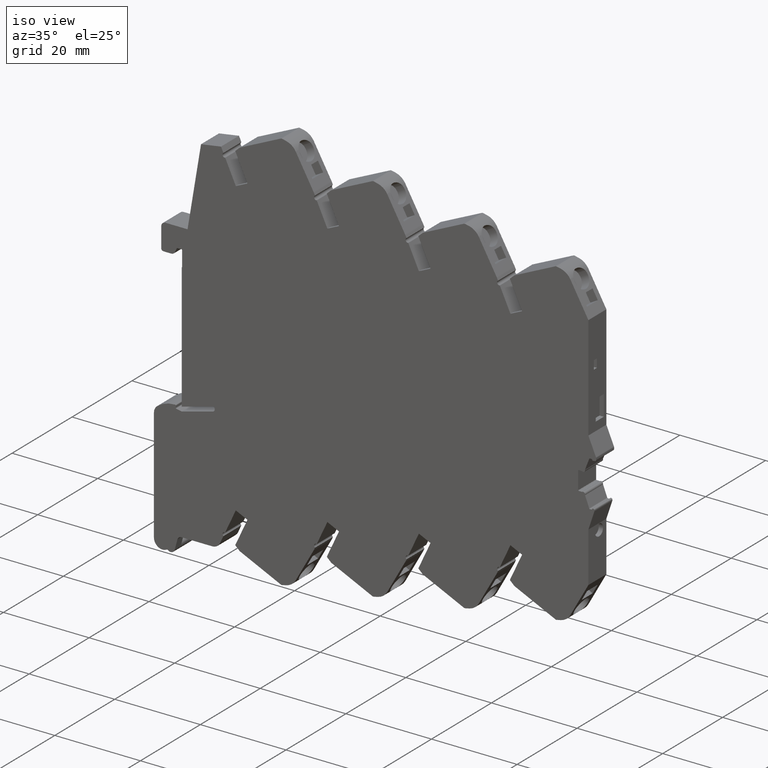
[diagram: clean part render]
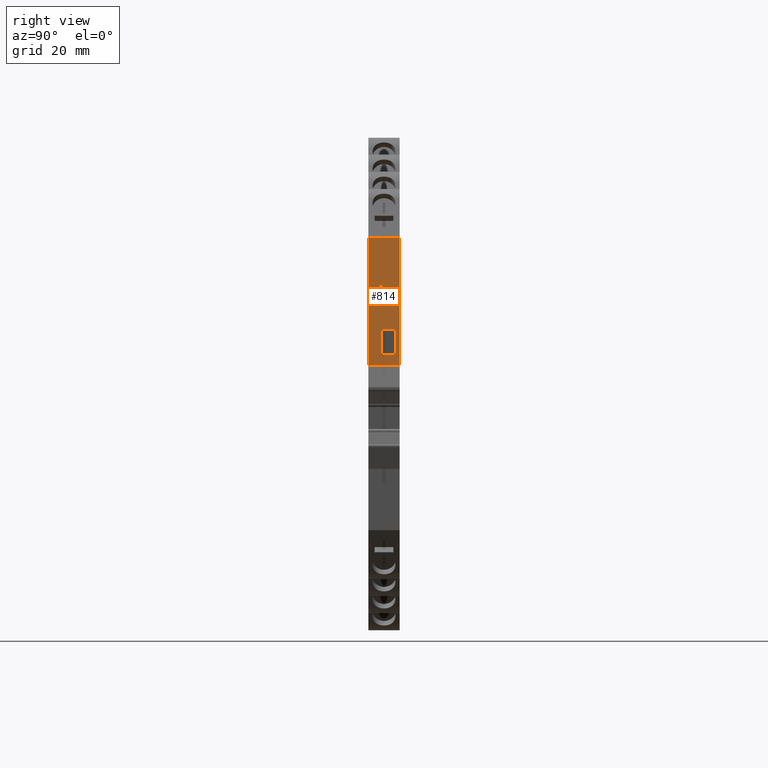
[diagram: tour spotlight — one face highlighted and labeled with its STEP entity id]
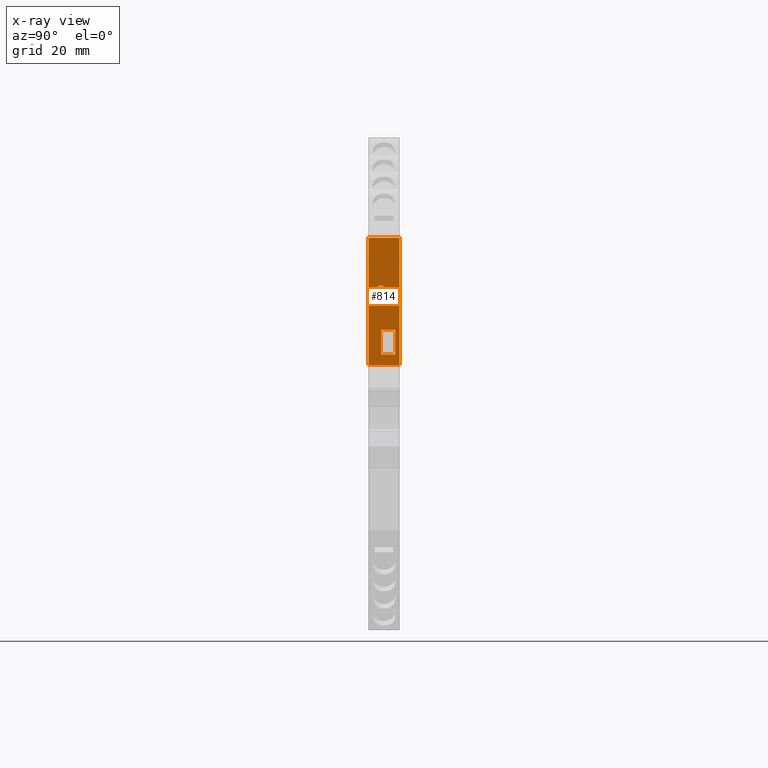
[diagram: x-ray of the same camera — body ghosted, this tour face saturated]
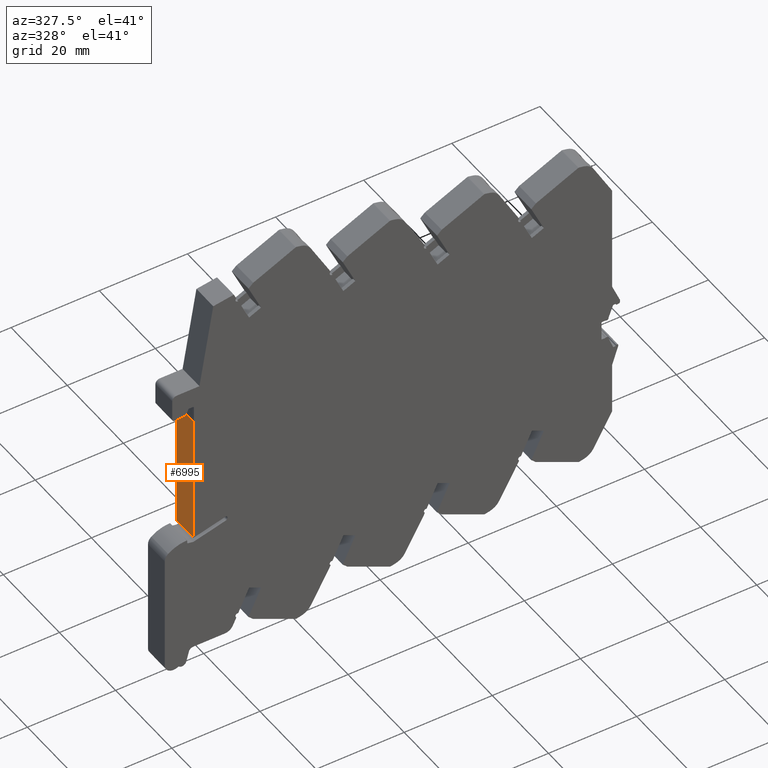
[diagram: tour spotlight — one face highlighted and labeled with its STEP entity id]
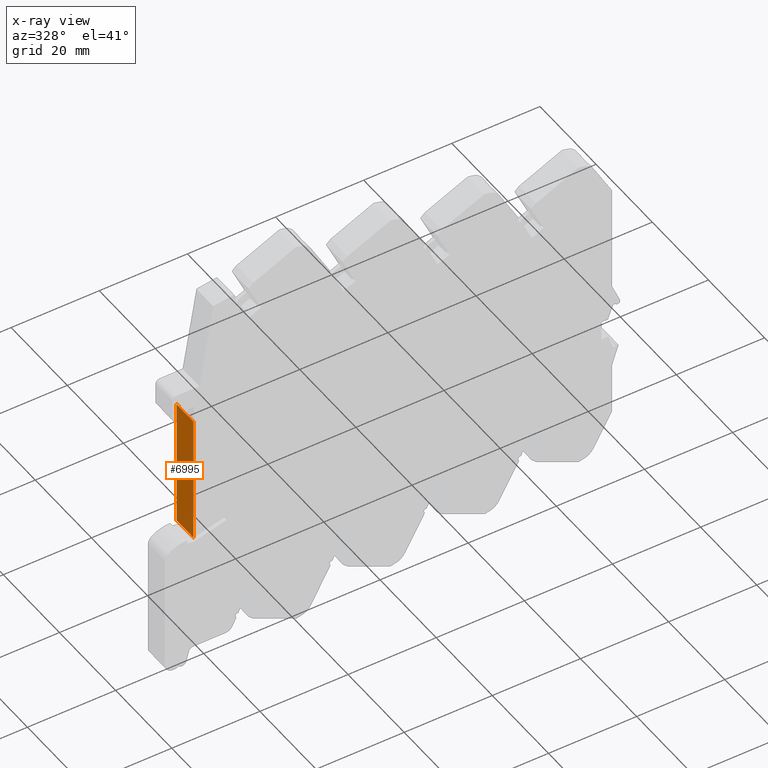
[diagram: x-ray of the same camera — body ghosted, this tour face saturated]
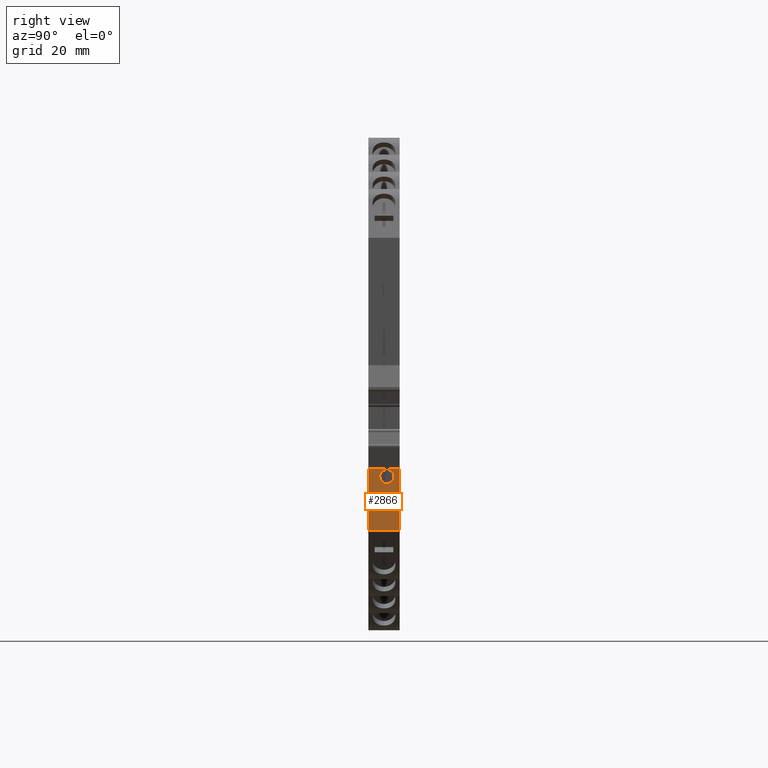
[diagram: tour spotlight — one face highlighted and labeled with its STEP entity id]
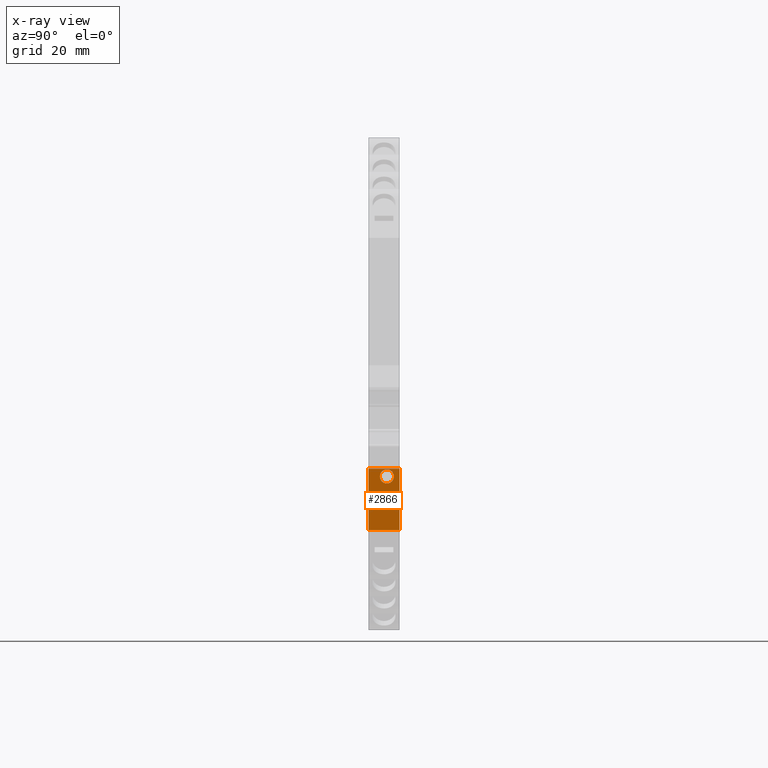
[diagram: x-ray of the same camera — body ghosted, this tour face saturated]
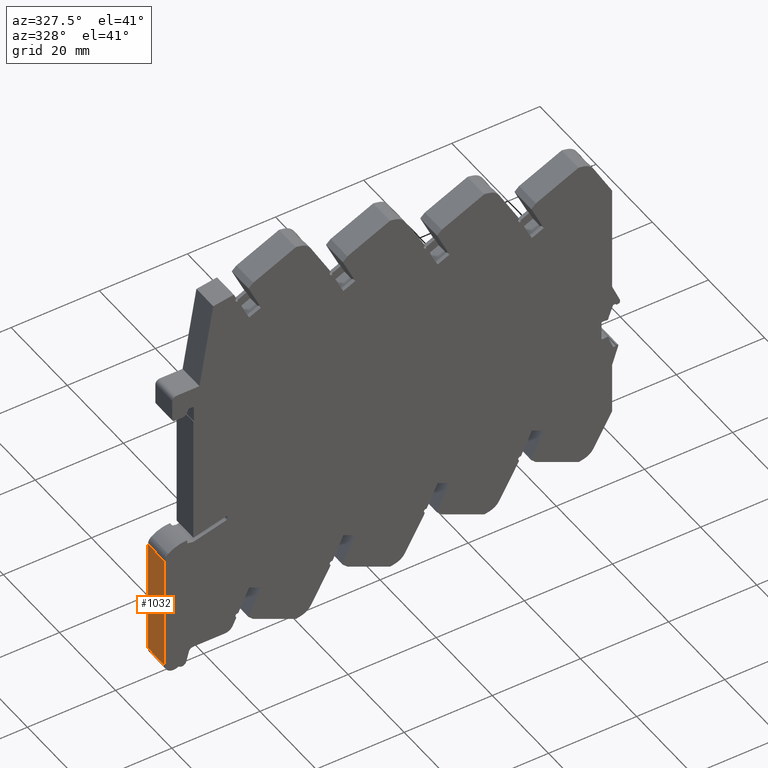
[diagram: tour spotlight — one face highlighted and labeled with its STEP entity id]
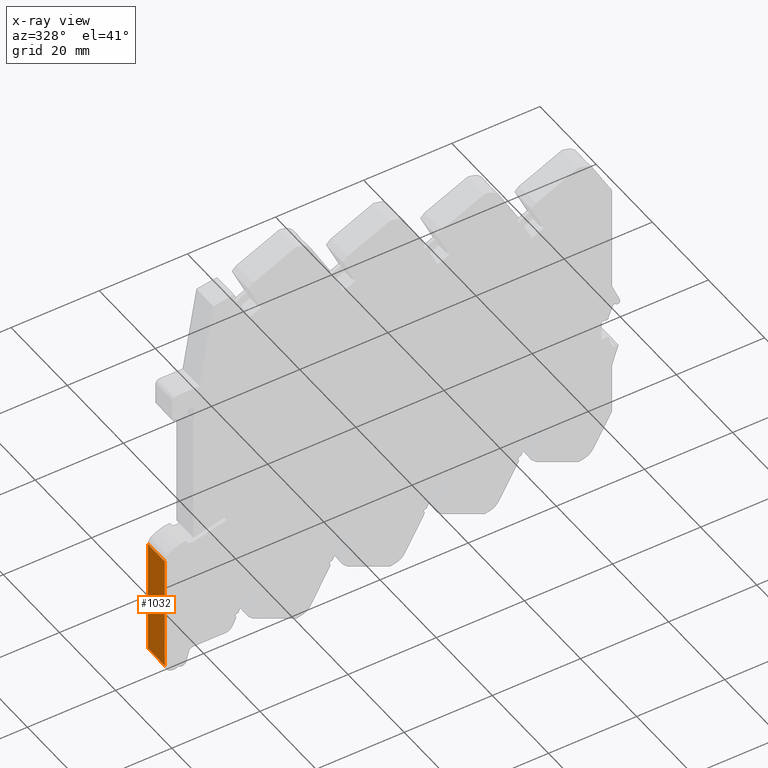
[diagram: x-ray of the same camera — body ghosted, this tour face saturated]
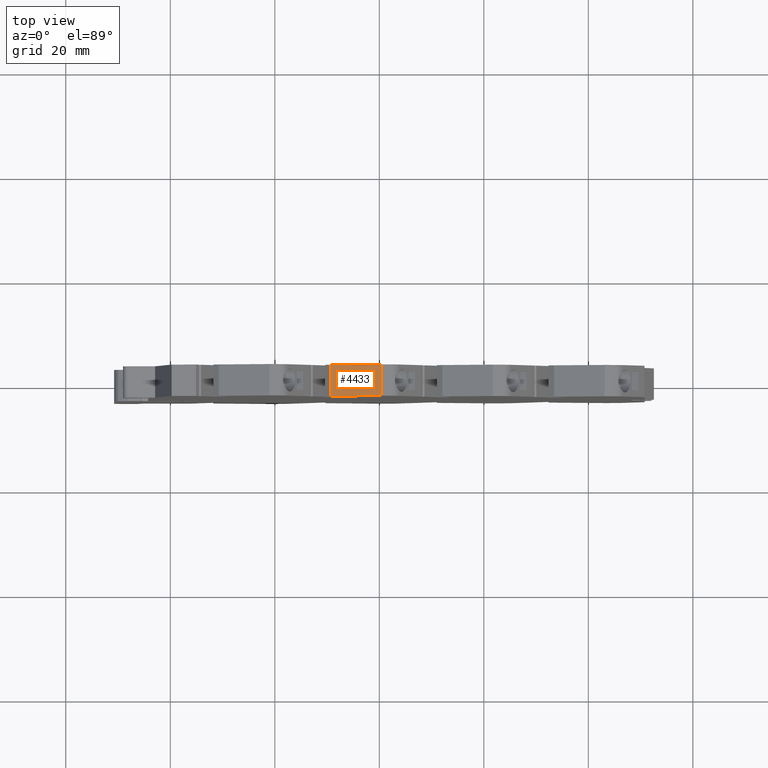
[diagram: tour spotlight — one face highlighted and labeled with its STEP entity id]
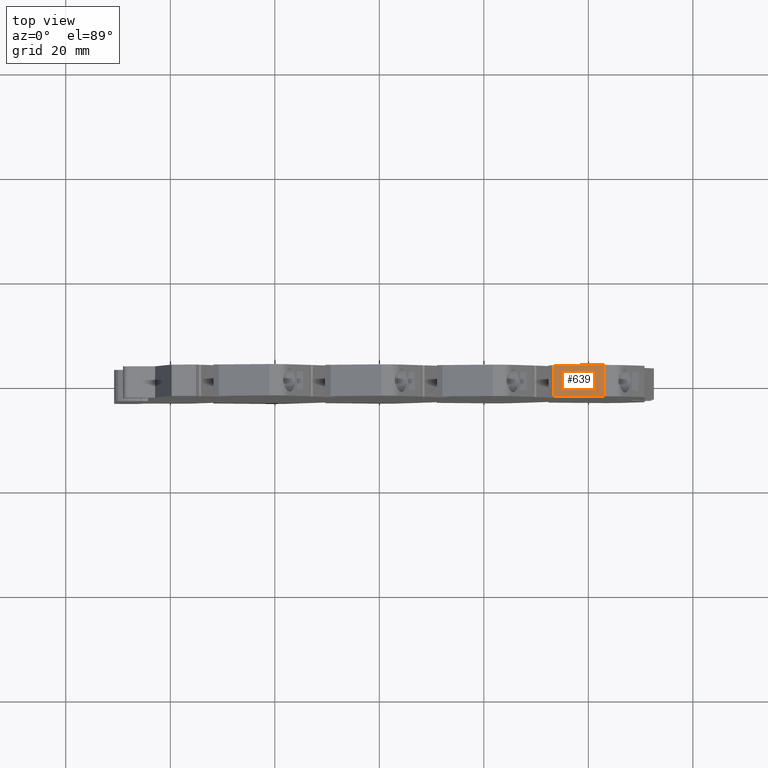
[diagram: tour spotlight — one face highlighted and labeled with its STEP entity id]
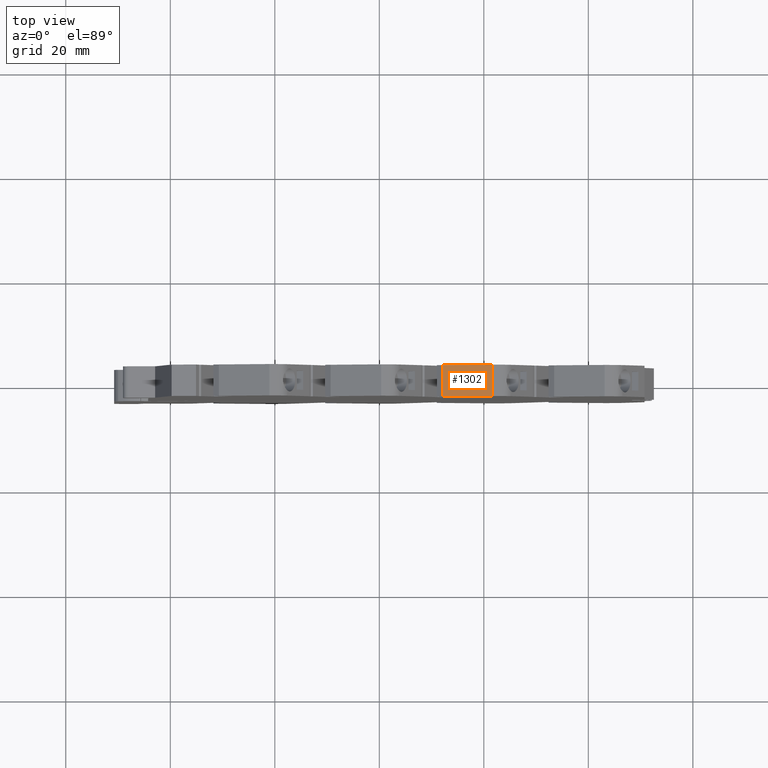
[diagram: tour spotlight — one face highlighted and labeled with its STEP entity id]
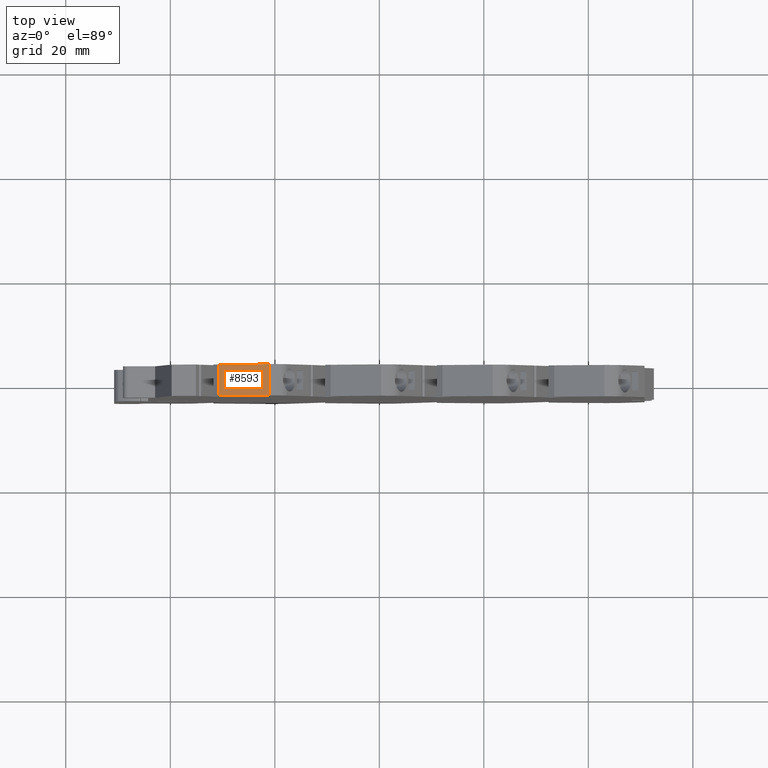
[diagram: tour spotlight — one face highlighted and labeled with its STEP entity id]
A machine part: a face-by-face anatomy tour. The part has 267 B-rep faces; the first image is the clean iso view, then the 8 largest visible faces are spotlighted one at a time (largest first), each with its STEP entity span.

Face 1 — right view, entity #814. An x-ray twin of the same camera follows (body ghosted, this face saturated) — the face is partly hidden behind the body. In plain terms, the highlighted planar face has unit normal (-1, 0, 0).
Definition (entity closure, byte-faithful):
#105 = DIRECTION ( 'NONE',  ( -1.000000000000000000, 0.000000000000000000, 0.000000000000000000 ) ) ;
#234 = ORIENTED_EDGE ( 'NONE', *, *, #1530, .F. ) ;
#239 = VECTOR ( 'NONE', #4626, 1000.000000000000000 ) ;
#244 = EDGE_CURVE ( 'NONE', #7953, #7270, #5267, .T. ) ;
#312 = VECTOR ( 'NONE', #7015, 1000.000000000000000 ) ;
#331 = ORIENTED_EDGE ( 'NONE', *, *, #2868, .F. ) ;
#379 = CARTESIAN_POINT ( 'NONE',  ( 3.000000000000000000, 4.574627000000000443, 50.75000000000000711 ) ) ;
#527 = DIRECTION ( 'NONE',  ( -1.000000000000000000, 0.000000000000000000, 0.000000000000000000 ) ) ;
#814 = ADVANCED_FACE ( 'NONE', ( #6098, #5960, #8627 ), #7319, .F. ) ;
#963 = VERTEX_POINT ( 'NONE', #3096 ) ;
#979 = VERTEX_POINT ( 'NONE', #7752 ) ;
#1050 = ORIENTED_EDGE ( 'NONE', *, *, #5834, .F. ) ;
#1183 = CARTESIAN_POINT ( 'NONE',  ( -0.1499999999999999667, 19.77500000000000213, 50.75000000000000711 ) ) ;
#1234 = EDGE_LOOP ( 'NONE', ( #331, #4892, #5023, #3878 ) ) ;
#1530 = EDGE_CURVE ( 'NONE', #1714, #1968, #8558, .T. ) ;
#1714 = VERTEX_POINT ( 'NONE', #2939 ) ;
#1932 = DIRECTION ( 'NONE',  ( 1.000000000000000000, 0.000000000000000000, 0.000000000000000000 ) ) ;
#1942 = CARTESIAN_POINT ( 'NONE',  ( -0.5500000000000001554, 6.575000000000000178, 50.75000000000000711 ) ) ;
#1968 = VERTEX_POINT ( 'NONE', #6665 ) ;
#2149 = ORIENTED_EDGE ( 'NONE', *, *, #2518, .T. ) ;
#2200 = DIRECTION ( 'NONE',  ( 1.000000000000000000, 0.000000000000000000, 0.000000000000000000 ) ) ;
#2347 = EDGE_LOOP ( 'NONE', ( #4737, #234, #7291, #5054 ) ) ;
#2406 = ORIENTED_EDGE ( 'NONE', *, *, #2559, .F. ) ;
#2483 = VECTOR ( 'NONE', #105, 1000.000000000000000 ) ;
#2518 = EDGE_CURVE ( 'NONE', #5297, #963, #3253, .T. ) ;
#2559 = EDGE_CURVE ( 'NONE', #7469, #4048, #6588, .T. ) ;
#2595 = CARTESIAN_POINT ( 'NONE',  ( 3.000000000000000000, 4.574627000000000443, 50.75000000000000711 ) ) ;
#2602 = VERTEX_POINT ( 'NONE', #1183 ) ;
#2621 = DIRECTION ( 'NONE',  ( 0.000000000000000000, 0.000000000000000000, -1.000000000000000000 ) ) ;
#2778 = VECTOR ( 'NONE', #3115, 1000.000000000000000 ) ;
#2813 = VERTEX_POINT ( 'NONE', #7817 ) ;
#2868 = EDGE_CURVE ( 'NONE', #7270, #2602, #5706, .T. ) ;
#2939 = CARTESIAN_POINT ( 'NONE',  ( -0.5500000000000001554, 6.575000000000000178, 50.75000000000000711 ) ) ;
#3096 = CARTESIAN_POINT ( 'NONE',  ( -3.000000000000000000, 28.93662499999999937, 50.75000000000000711 ) ) ;
#3115 = DIRECTION ( 'NONE',  ( 0.000000000000000000, -1.000000000000000000, 0.000000000000000000 ) ) ;
#3253 = LINE ( 'NONE', #4060, #8487 ) ;
#3316 = CARTESIAN_POINT ( 'NONE',  ( -0.5500000000000001554, 11.37500000000000000, 50.75000000000000711 ) ) ;
#3522 = EDGE_CURVE ( 'NONE', #979, #7953, #5394, .T. ) ;
#3587 = VECTOR ( 'NONE', #5885, 1000.000000000000000 ) ;
#3600 = LINE ( 'NONE', #8416, #7253 ) ;
#3741 = AXIS2_PLACEMENT_3D ( 'NONE', #6664, #2621, #5305 ) ;
#3767 = VERTEX_POINT ( 'NONE', #8099 ) ;
#3782 = DIRECTION ( 'NONE',  ( 0.000000000000000000, 1.000000000000000000, 0.000000000000000000 ) ) ;
#3878 = ORIENTED_EDGE ( 'NONE', *, *, #5304, .F. ) ;
#3944 = CARTESIAN_POINT ( 'NONE',  ( -1.149999999999999911, 17.77499999999999858, 50.75000000000000711 ) ) ;
#3995 = VECTOR ( 'NONE', #2200, 1000.000000000000000 ) ;
#4047 = CARTESIAN_POINT ( 'NONE',  ( -0.1499999999999999667, 17.77499999999999858, 50.75000000000000711 ) ) ;
#4048 = VERTEX_POINT ( 'NONE', #7782 ) ;
#4060 = CARTESIAN_POINT ( 'NONE',  ( 3.000000000000000000, 28.93662499999999937, 50.75000000000000711 ) ) ;
#4154 = CARTESIAN_POINT ( 'NONE',  ( 3.000000000000000000, 28.93662499999999937, 50.75000000000000711 ) ) ;
#4189 = VECTOR ( 'NONE', #8636, 1000.000000000000000 ) ;
#4366 = EDGE_CURVE ( 'NONE', #963, #4048, #5141, .T. ) ;
#4393 = CARTESIAN_POINT ( 'NONE',  ( 2.149999999999999911, 6.575000000000000178, 50.75000000000000711 ) ) ;
#4568 = VECTOR ( 'NONE', #1932, 1000.000000000000000 ) ;
#4626 = DIRECTION ( 'NONE',  ( 0.000000000000000000, -1.000000000000000000, 0.000000000000000000 ) ) ;
#4737 = ORIENTED_EDGE ( 'NONE', *, *, #5862, .F. ) ;
#4892 = ORIENTED_EDGE ( 'NONE', *, *, #244, .F. ) ;
#5023 = ORIENTED_EDGE ( 'NONE', *, *, #3522, .F. ) ;
#5054 = ORIENTED_EDGE ( 'NONE', *, *, #5623, .F. ) ;
#5141 = LINE ( 'NONE', #5618, #2778 ) ;
#5183 = LINE ( 'NONE', #5313, #4189 ) ;
#5267 = LINE ( 'NONE', #7946, #4568 ) ;
#5289 = EDGE_LOOP ( 'NONE', ( #5952, #2406, #1050, #2149 ) ) ;
#5297 = VERTEX_POINT ( 'NONE', #4154 ) ;
#5304 = EDGE_CURVE ( 'NONE', #2602, #979, #6289, .T. ) ;
#5305 = DIRECTION ( 'NONE',  ( -1.000000000000000000, 0.000000000000000000, 0.000000000000000000 ) ) ;
#5313 = CARTESIAN_POINT ( 'NONE',  ( 2.149999999999999911, 11.37500000000000000, 50.75000000000000711 ) ) ;
#5389 = EDGE_CURVE ( 'NONE', #3767, #1714, #5470, .T. ) ;
#5394 = LINE ( 'NONE', #6137, #6039 ) ;
#5470 = LINE ( 'NONE', #3316, #239 ) ;
#5612 = LINE ( 'NONE', #4393, #312 ) ;
#5618 = CARTESIAN_POINT ( 'NONE',  ( -3.000000000000000000, 28.93662499999999937, 50.75000000000000711 ) ) ;
#5623 = EDGE_CURVE ( 'NONE', #2813, #3767, #5183, .T. ) ;
#5706 = LINE ( 'NONE', #7113, #8160 ) ;
#5834 = EDGE_CURVE ( 'NONE', #5297, #7469, #3600, .T. ) ;
#5862 = EDGE_CURVE ( 'NONE', #1968, #2813, #5612, .T. ) ;
#5885 = DIRECTION ( 'NONE',  ( -1.000000000000000000, 0.000000000000000000, 0.000000000000000000 ) ) ;
#5952 = ORIENTED_EDGE ( 'NONE', *, *, #4366, .T. ) ;
#5960 = FACE_BOUND ( 'NONE', #2347, .T. ) ;
#6039 = VECTOR ( 'NONE', #6834, 1000.000000000000000 ) ;
#6098 = FACE_OUTER_BOUND ( 'NONE', #5289, .T. ) ;
#6137 = CARTESIAN_POINT ( 'NONE',  ( -1.149999999999999911, 19.77500000000000213, 50.75000000000000711 ) ) ;
#6278 = DIRECTION ( 'NONE',  ( 0.000000000000000000, -1.000000000000000000, 0.000000000000000000 ) ) ;
#6289 = LINE ( 'NONE', #6736, #2483 ) ;
#6588 = LINE ( 'NONE', #2595, #3587 ) ;
#6664 = CARTESIAN_POINT ( 'NONE',  ( 3.000000000000000000, 28.93662499999999937, 50.75000000000000711 ) ) ;
#6665 = CARTESIAN_POINT ( 'NONE',  ( 2.149999999999999911, 6.575000000000000178, 50.75000000000000711 ) ) ;
#6736 = CARTESIAN_POINT ( 'NONE',  ( -0.1499999999999999667, 19.77500000000000213, 50.75000000000000711 ) ) ;
#6834 = DIRECTION ( 'NONE',  ( 0.000000000000000000, -1.000000000000000000, 0.000000000000000000 ) ) ;
#7015 = DIRECTION ( 'NONE',  ( 0.000000000000000000, 1.000000000000000000, 0.000000000000000000 ) ) ;
#7113 = CARTESIAN_POINT ( 'NONE',  ( -0.1499999999999999667, 17.77499999999999858, 50.75000000000000711 ) ) ;
#7253 = VECTOR ( 'NONE', #6278, 1000.000000000000000 ) ;
#7270 = VERTEX_POINT ( 'NONE', #4047 ) ;
#7291 = ORIENTED_EDGE ( 'NONE', *, *, #5389, .F. ) ;
#7319 = PLANE ( 'NONE',  #3741 ) ;
#7469 = VERTEX_POINT ( 'NONE', #379 ) ;
#7752 = CARTESIAN_POINT ( 'NONE',  ( -1.149999999999999911, 19.77500000000000213, 50.75000000000000711 ) ) ;
#7782 = CARTESIAN_POINT ( 'NONE',  ( -3.000000000000000000, 4.574627000000000443, 50.75000000000000711 ) ) ;
#7817 = CARTESIAN_POINT ( 'NONE',  ( 2.149999999999999911, 11.37500000000000000, 50.75000000000000711 ) ) ;
#7946 = CARTESIAN_POINT ( 'NONE',  ( -1.149999999999999911, 17.77499999999999858, 50.75000000000000711 ) ) ;
#7953 = VERTEX_POINT ( 'NONE', #3944 ) ;
#8099 = CARTESIAN_POINT ( 'NONE',  ( -0.5500000000000001554, 11.37500000000000000, 50.75000000000000711 ) ) ;
#8160 = VECTOR ( 'NONE', #3782, 1000.000000000000000 ) ;
#8416 = CARTESIAN_POINT ( 'NONE',  ( 3.000000000000000000, 28.93662499999999937, 50.75000000000000711 ) ) ;
#8487 = VECTOR ( 'NONE', #527, 1000.000000000000000 ) ;
#8558 = LINE ( 'NONE', #1942, #3995 ) ;
#8627 = FACE_BOUND ( 'NONE', #1234, .T. ) ;
#8636 = DIRECTION ( 'NONE',  ( -1.000000000000000000, 0.000000000000000000, 0.000000000000000000 ) ) ;

Face 2 — auxiliary view, entity #6995. An x-ray twin of the same camera follows (body ghosted, this face saturated) — the face is partly hidden behind the body. In plain terms, the highlighted planar face has unit normal (1, 0, 0).
Definition (entity closure, byte-faithful):
#24 = DIRECTION ( 'NONE',  ( 0.000000000000000000, 1.000000000000000000, 0.000000000000000000 ) ) ;
#584 = AXIS2_PLACEMENT_3D ( 'NONE', #5373, #5464, #4191 ) ;
#1441 = VECTOR ( 'NONE', #6847, 1000.000000000000000 ) ;
#1446 = LINE ( 'NONE', #2021, #1441 ) ;
#1488 = DIRECTION ( 'NONE',  ( -1.000000000000000000, 0.000000000000000000, 0.000000000000000000 ) ) ;
#1779 = CARTESIAN_POINT ( 'NONE',  ( -3.000000000000000000, 14.72499999999999964, -44.24999999999999289 ) ) ;
#1858 = ORIENTED_EDGE ( 'NONE', *, *, #4430, .T. ) ;
#1985 = PLANE ( 'NONE',  #584 ) ;
#2021 = CARTESIAN_POINT ( 'NONE',  ( -3.000000000000000000, -14.72499999999999964, -44.24999999999999289 ) ) ;
#2154 = VECTOR ( 'NONE', #24, 1000.000000000000000 ) ;
#2447 = CARTESIAN_POINT ( 'NONE',  ( 3.000000000000000000, 14.72499999999999964, -44.24999999999999289 ) ) ;
#3161 = EDGE_CURVE ( 'NONE', #7525, #6448, #7424, .T. ) ;
#3379 = ORIENTED_EDGE ( 'NONE', *, *, #3161, .F. ) ;
#3829 = ORIENTED_EDGE ( 'NONE', *, *, #7279, .T. ) ;
#4037 = CARTESIAN_POINT ( 'NONE',  ( 3.000000000000000000, -14.72499999999999964, -44.24999999999999289 ) ) ;
#4191 = DIRECTION ( 'NONE',  ( 0.000000000000000000, 1.000000000000000000, 0.000000000000000000 ) ) ;
#4233 = VECTOR ( 'NONE', #8589, 1000.000000000000000 ) ;
#4430 = EDGE_CURVE ( 'NONE', #7741, #7046, #5217, .T. ) ;
#5217 = LINE ( 'NONE', #6014, #4233 ) ;
#5250 = EDGE_LOOP ( 'NONE', ( #3829, #3379, #6788, #1858 ) ) ;
#5373 = CARTESIAN_POINT ( 'NONE',  ( 3.000000000000000000, -14.72499999999999964, -44.24999999999999289 ) ) ;
#5464 = DIRECTION ( 'NONE',  ( 0.000000000000000000, -0.000000000000000000, 1.000000000000000000 ) ) ;
#6014 = CARTESIAN_POINT ( 'NONE',  ( 3.000000000000000000, -14.72499999999999964, -44.24999999999999289 ) ) ;
#6124 = EDGE_CURVE ( 'NONE', #7741, #7525, #6219, .T. ) ;
#6219 = LINE ( 'NONE', #4037, #2154 ) ;
#6333 = VECTOR ( 'NONE', #1488, 1000.000000000000000 ) ;
#6448 = VERTEX_POINT ( 'NONE', #1779 ) ;
#6788 = ORIENTED_EDGE ( 'NONE', *, *, #6124, .F. ) ;
#6833 = CARTESIAN_POINT ( 'NONE',  ( 3.000000000000000000, -14.72499999999999964, -44.24999999999999289 ) ) ;
#6847 = DIRECTION ( 'NONE',  ( 0.000000000000000000, 1.000000000000000000, 0.000000000000000000 ) ) ;
#6995 = ADVANCED_FACE ( 'NONE', ( #7523 ), #1985, .F. ) ;
#7046 = VERTEX_POINT ( 'NONE', #8174 ) ;
#7279 = EDGE_CURVE ( 'NONE', #7046, #6448, #1446, .T. ) ;
#7424 = LINE ( 'NONE', #7464, #6333 ) ;
#7464 = CARTESIAN_POINT ( 'NONE',  ( 3.000000000000000000, 14.72499999999999964, -44.24999999999999289 ) ) ;
#7523 = FACE_OUTER_BOUND ( 'NONE', #5250, .T. ) ;
#7525 = VERTEX_POINT ( 'NONE', #2447 ) ;
#7741 = VERTEX_POINT ( 'NONE', #6833 ) ;
#8174 = CARTESIAN_POINT ( 'NONE',  ( -3.000000000000000000, -14.72499999999999964, -44.24999999999999289 ) ) ;
#8589 = DIRECTION ( 'NONE',  ( -1.000000000000000000, 0.000000000000000000, 0.000000000000000000 ) ) ;

Face 3 — right view, entity #2866. An x-ray twin of the same camera follows (body ghosted, this face saturated) — the face is partly hidden behind the body. In plain terms, the highlighted planar face has unit normal (-1, 0, 0).
Definition (entity closure, byte-faithful):
#168 = VERTEX_POINT ( 'NONE', #4486 ) ;
#177 = AXIS2_PLACEMENT_3D ( 'NONE', #4449, #964, #3651 ) ;
#226 = DIRECTION ( 'NONE',  ( -1.000000000000000000, 0.000000000000000000, 0.000000000000000000 ) ) ;
#428 = FACE_BOUND ( 'NONE', #6979, .T. ) ;
#571 = VECTOR ( 'NONE', #226, 1000.000000000000000 ) ;
#964 = DIRECTION ( 'NONE',  ( 0.000000000000000000, 0.000000000000000000, -1.000000000000000000 ) ) ;
#1031 = VECTOR ( 'NONE', #8604, 1000.000000000000000 ) ;
#1179 = VECTOR ( 'NONE', #4940, 1000.000000000000000 ) ;
#1465 = LINE ( 'NONE', #2872, #571 ) ;
#1519 = EDGE_CURVE ( 'NONE', #2068, #168, #5323, .T. ) ;
#1575 = VECTOR ( 'NONE', #5966, 1000.000000000000000 ) ;
#1632 = PLANE ( 'NONE',  #177 ) ;
#1986 = CARTESIAN_POINT ( 'NONE',  ( 3.000000000000000000, -26.98662500000000009, 50.75000000000000711 ) ) ;
#2068 = VERTEX_POINT ( 'NONE', #3721 ) ;
#2419 = EDGE_CURVE ( 'NONE', #7902, #168, #7969, .T. ) ;
#2667 = CARTESIAN_POINT ( 'NONE',  ( 3.000000000000000000, -15.27537300000000009, 50.75000000000000711 ) ) ;
#2866 = ADVANCED_FACE ( 'NONE', ( #7640, #428 ), #1632, .F. ) ;
#2872 = CARTESIAN_POINT ( 'NONE',  ( 3.000000000000000000, -15.27537300000000009, 50.75000000000000711 ) ) ;
#2934 = DIRECTION ( 'NONE',  ( 0.000000000000000000, 1.000000000000000000, 0.000000000000000000 ) ) ;
#3485 = VERTEX_POINT ( 'NONE', #8066 ) ;
#3651 = DIRECTION ( 'NONE',  ( -1.000000000000000000, 0.000000000000000000, 0.000000000000000000 ) ) ;
#3721 = CARTESIAN_POINT ( 'NONE',  ( 3.000000000000000000, -26.98662500000000009, 50.75000000000000711 ) ) ;
#3946 = AXIS2_PLACEMENT_3D ( 'NONE', #4255, #7627, #2934 ) ;
#4196 = CARTESIAN_POINT ( 'NONE',  ( 0.5500000000000001554, -15.37500000000000000, 50.75000000000000711 ) ) ;
#4255 = CARTESIAN_POINT ( 'NONE',  ( 0.5500000000000001554, -16.72500000000000142, 50.75000000000000711 ) ) ;
#4449 = CARTESIAN_POINT ( 'NONE',  ( 3.000000000000000000, -15.27537300000000009, 50.75000000000000711 ) ) ;
#4486 = CARTESIAN_POINT ( 'NONE',  ( -3.000000000000000000, -26.98662500000000009, 50.75000000000000711 ) ) ;
#4516 = ORIENTED_EDGE ( 'NONE', *, *, #4718, .F. ) ;
#4606 = LINE ( 'NONE', #2667, #1575 ) ;
#4718 = EDGE_CURVE ( 'NONE', #7529, #7529, #5493, .T. ) ;
#4898 = CARTESIAN_POINT ( 'NONE',  ( -3.000000000000000000, -15.27537300000000009, 50.75000000000000711 ) ) ;
#4940 = DIRECTION ( 'NONE',  ( 0.000000000000000000, -1.000000000000000000, 0.000000000000000000 ) ) ;
#4963 = EDGE_CURVE ( 'NONE', #3485, #7902, #1465, .T. ) ;
#5323 = LINE ( 'NONE', #1986, #1031 ) ;
#5493 = CIRCLE ( 'NONE', #3946, 1.350000000000000533 ) ;
#5966 = DIRECTION ( 'NONE',  ( 0.000000000000000000, -1.000000000000000000, 0.000000000000000000 ) ) ;
#6001 = ORIENTED_EDGE ( 'NONE', *, *, #1519, .F. ) ;
#6103 = CARTESIAN_POINT ( 'NONE',  ( -3.000000000000000000, -15.27537300000000009, 50.75000000000000711 ) ) ;
#6979 = EDGE_LOOP ( 'NONE', ( #4516 ) ) ;
#7529 = VERTEX_POINT ( 'NONE', #4196 ) ;
#7546 = ORIENTED_EDGE ( 'NONE', *, *, #2419, .T. ) ;
#7627 = DIRECTION ( 'NONE',  ( 0.000000000000000000, 0.000000000000000000, 1.000000000000000000 ) ) ;
#7640 = FACE_OUTER_BOUND ( 'NONE', #8220, .T. ) ;
#7858 = ORIENTED_EDGE ( 'NONE', *, *, #7974, .F. ) ;
#7902 = VERTEX_POINT ( 'NONE', #6103 ) ;
#7969 = LINE ( 'NONE', #4898, #1179 ) ;
#7974 = EDGE_CURVE ( 'NONE', #3485, #2068, #4606, .T. ) ;
#8066 = CARTESIAN_POINT ( 'NONE',  ( 3.000000000000000000, -15.27537300000000009, 50.75000000000000711 ) ) ;
#8220 = EDGE_LOOP ( 'NONE', ( #7546, #6001, #7858, #8449 ) ) ;
#8449 = ORIENTED_EDGE ( 'NONE', *, *, #4963, .T. ) ;
#8604 = DIRECTION ( 'NONE',  ( -1.000000000000000000, 0.000000000000000000, 0.000000000000000000 ) ) ;

Face 4 — auxiliary view, entity #1032. An x-ray twin of the same camera follows (body ghosted, this face saturated) — the face is partly hidden behind the body. In plain terms, the highlighted planar face has unit normal (1, 0, 0).
Definition (entity closure, byte-faithful):
#91 = AXIS2_PLACEMENT_3D ( 'NONE', #4427, #3720, #4503 ) ;
#619 = EDGE_CURVE ( 'NONE', #7972, #3617, #6615, .T. ) ;
#740 = VECTOR ( 'NONE', #6663, 1000.000000000000000 ) ;
#855 = CARTESIAN_POINT ( 'NONE',  ( 3.000000000000000000, -44.12500000000000000, -50.74999999999999289 ) ) ;
#1030 = CARTESIAN_POINT ( 'NONE',  ( 3.000000000000000000, -44.12500000000000000, -50.74999999999999289 ) ) ;
#1032 = ADVANCED_FACE ( 'NONE', ( #5860 ), #1821, .F. ) ;
#1205 = VERTEX_POINT ( 'NONE', #3531 ) ;
#1301 = CARTESIAN_POINT ( 'NONE',  ( -3.000000000000000000, -44.12500000000000000, -50.74999999999999289 ) ) ;
#1405 = LINE ( 'NONE', #855, #7879 ) ;
#1561 = LINE ( 'NONE', #1030, #3014 ) ;
#1821 = PLANE ( 'NONE',  #91 ) ;
#2142 = EDGE_CURVE ( 'NONE', #7990, #1205, #1561, .T. ) ;
#3014 = VECTOR ( 'NONE', #5734, 1000.000000000000000 ) ;
#3531 = CARTESIAN_POINT ( 'NONE',  ( -3.000000000000000000, -44.12500000000000000, -50.74999999999999289 ) ) ;
#3617 = VERTEX_POINT ( 'NONE', #6305 ) ;
#3720 = DIRECTION ( 'NONE',  ( 0.000000000000000000, -0.000000000000000000, 1.000000000000000000 ) ) ;
#3777 = ORIENTED_EDGE ( 'NONE', *, *, #5956, .T. ) ;
#4139 = ORIENTED_EDGE ( 'NONE', *, *, #2142, .T. ) ;
#4387 = ORIENTED_EDGE ( 'NONE', *, *, #619, .F. ) ;
#4427 = CARTESIAN_POINT ( 'NONE',  ( 3.000000000000000000, -44.12500000000000000, -50.74999999999999289 ) ) ;
#4503 = DIRECTION ( 'NONE',  ( 0.000000000000000000, 1.000000000000000000, 0.000000000000000000 ) ) ;
#4648 = CARTESIAN_POINT ( 'NONE',  ( 3.000000000000000000, -44.12500000000000000, -50.74999999999999289 ) ) ;
#4751 = CARTESIAN_POINT ( 'NONE',  ( 3.000000000000000000, -17.72635200000000211, -50.74999999999999289 ) ) ;
#5413 = ORIENTED_EDGE ( 'NONE', *, *, #7263, .F. ) ;
#5734 = DIRECTION ( 'NONE',  ( -1.000000000000000000, 0.000000000000000000, 0.000000000000000000 ) ) ;
#5860 = FACE_OUTER_BOUND ( 'NONE', #6939, .T. ) ;
#5956 = EDGE_CURVE ( 'NONE', #1205, #3617, #6612, .T. ) ;
#6305 = CARTESIAN_POINT ( 'NONE',  ( -3.000000000000000000, -17.72635200000000211, -50.74999999999999289 ) ) ;
#6612 = LINE ( 'NONE', #1301, #740 ) ;
#6615 = LINE ( 'NONE', #7809, #8089 ) ;
#6663 = DIRECTION ( 'NONE',  ( 0.000000000000000000, 1.000000000000000000, 0.000000000000000000 ) ) ;
#6939 = EDGE_LOOP ( 'NONE', ( #3777, #4387, #5413, #4139 ) ) ;
#7263 = EDGE_CURVE ( 'NONE', #7990, #7972, #1405, .T. ) ;
#7809 = CARTESIAN_POINT ( 'NONE',  ( 3.000000000000000000, -17.72635200000000211, -50.74999999999999289 ) ) ;
#7879 = VECTOR ( 'NONE', #8678, 1000.000000000000000 ) ;
#7886 = DIRECTION ( 'NONE',  ( -1.000000000000000000, 0.000000000000000000, 0.000000000000000000 ) ) ;
#7972 = VERTEX_POINT ( 'NONE', #4751 ) ;
#7990 = VERTEX_POINT ( 'NONE', #4648 ) ;
#8089 = VECTOR ( 'NONE', #7886, 1000.000000000000000 ) ;
#8678 = DIRECTION ( 'NONE',  ( 0.000000000000000000, 1.000000000000000000, 0.000000000000000000 ) ) ;

Face 5 — top view, entity #4433. In plain terms, the highlighted planar face has unit normal (0.4226, 0, -0.9063).
Definition (entity closure, byte-faithful):
#48 = VERTEX_POINT ( 'NONE', #3698 ) ;
#212 = ORIENTED_EDGE ( 'NONE', *, *, #6093, .T. ) ;
#410 = CARTESIAN_POINT ( 'NONE',  ( -3.000000000000000000, 40.31255999999999773, -9.315506999999993099 ) ) ;
#493 = VECTOR ( 'NONE', #8571, 1000.000000000000114 ) ;
#516 = CARTESIAN_POINT ( 'NONE',  ( 3.000000000000000000, 40.31255999999999773, -9.315506999999993099 ) ) ;
#649 = DIRECTION ( 'NONE',  ( 0.000000000000000000, -0.9063078068647748564, 0.4226182192191458853 ) ) ;
#685 = DIRECTION ( 'NONE',  ( -1.000000000000000000, 0.000000000000000000, 0.000000000000000000 ) ) ;
#727 = LINE ( 'NONE', #2185, #6351 ) ;
#937 = EDGE_CURVE ( 'NONE', #4605, #48, #7091, .T. ) ;
#1431 = AXIS2_PLACEMENT_3D ( 'NONE', #516, #649, #6497 ) ;
#1515 = LINE ( 'NONE', #6746, #7157 ) ;
#1834 = FACE_OUTER_BOUND ( 'NONE', #4968, .T. ) ;
#1972 = CARTESIAN_POINT ( 'NONE',  ( 3.000000000000000000, 44.79747229475459847, 0.3024196321034094970 ) ) ;
#2185 = CARTESIAN_POINT ( 'NONE',  ( 3.000000000000000000, 40.31255999999999773, -9.315506999999993099 ) ) ;
#2718 = CARTESIAN_POINT ( 'NONE',  ( -3.000000000000000000, 40.31255999999999773, -9.315506999999993099 ) ) ;
#3070 = VERTEX_POINT ( 'NONE', #1972 ) ;
#3226 = ORIENTED_EDGE ( 'NONE', *, *, #937, .T. ) ;
#3535 = EDGE_CURVE ( 'NONE', #3070, #48, #1515, .T. ) ;
#3698 = CARTESIAN_POINT ( 'NONE',  ( -3.000000000000000000, 44.79747229475459847, 0.3024196321034094970 ) ) ;
#3839 = VECTOR ( 'NONE', #4235, 1000.000000000000114 ) ;
#3862 = PLANE ( 'NONE',  #1431 ) ;
#4235 = DIRECTION ( 'NONE',  ( 0.000000000000000000, 0.4226182192191458298, 0.9063078068647747454 ) ) ;
#4433 = ADVANCED_FACE ( 'NONE', ( #1834 ), #3862, .F. ) ;
#4605 = VERTEX_POINT ( 'NONE', #2718 ) ;
#4896 = LINE ( 'NONE', #4986, #3839 ) ;
#4968 = EDGE_LOOP ( 'NONE', ( #3226, #8468, #8365, #212 ) ) ;
#4986 = CARTESIAN_POINT ( 'NONE',  ( 3.000000000000000000, 40.31255999999999773, -9.315506999999993099 ) ) ;
#6093 = EDGE_CURVE ( 'NONE', #6878, #4605, #727, .T. ) ;
#6351 = VECTOR ( 'NONE', #6836, 1000.000000000000000 ) ;
#6497 = DIRECTION ( 'NONE',  ( 1.000000000000000000, 0.000000000000000000, 0.000000000000000000 ) ) ;
#6746 = CARTESIAN_POINT ( 'NONE',  ( 3.000000000000000000, 44.79747229475459847, 0.3024196321034094970 ) ) ;
#6836 = DIRECTION ( 'NONE',  ( -1.000000000000000000, 0.000000000000000000, 0.000000000000000000 ) ) ;
#6851 = EDGE_CURVE ( 'NONE', #6878, #3070, #4896, .T. ) ;
#6878 = VERTEX_POINT ( 'NONE', #7164 ) ;
#7091 = LINE ( 'NONE', #410, #493 ) ;
#7157 = VECTOR ( 'NONE', #685, 1000.000000000000000 ) ;
#7164 = CARTESIAN_POINT ( 'NONE',  ( 3.000000000000000000, 40.31255999999999773, -9.315506999999993099 ) ) ;
#8365 = ORIENTED_EDGE ( 'NONE', *, *, #6851, .F. ) ;
#8468 = ORIENTED_EDGE ( 'NONE', *, *, #3535, .F. ) ;
#8571 = DIRECTION ( 'NONE',  ( 0.000000000000000000, 0.4226182192191458298, 0.9063078068647747454 ) ) ;

Face 6 — top view, entity #639. In plain terms, the highlighted planar face has unit normal (0.4226, 0, -0.9063).
Definition (entity closure, byte-faithful):
#639 = ADVANCED_FACE ( 'NONE', ( #8503 ), #4557, .F. ) ;
#686 = CARTESIAN_POINT ( 'NONE',  ( -3.000000000000000000, 33.77255999999999858, 33.45449300000000648 ) ) ;
#1092 = CARTESIAN_POINT ( 'NONE',  ( -3.000000000000000000, 38.25747229475460642, 43.07241963210341851 ) ) ;
#1416 = ORIENTED_EDGE ( 'NONE', *, *, #5554, .F. ) ;
#1914 = VERTEX_POINT ( 'NONE', #5523 ) ;
#1956 = EDGE_LOOP ( 'NONE', ( #4466, #1416, #2625, #7842 ) ) ;
#2099 = LINE ( 'NONE', #3459, #3532 ) ;
#2625 = ORIENTED_EDGE ( 'NONE', *, *, #7641, .F. ) ;
#2659 = CARTESIAN_POINT ( 'NONE',  ( 3.000000000000000000, 33.77255999999999858, 33.45449300000000648 ) ) ;
#2752 = LINE ( 'NONE', #2659, #3109 ) ;
#3109 = VECTOR ( 'NONE', #4690, 1000.000000000000000 ) ;
#3313 = VERTEX_POINT ( 'NONE', #6361 ) ;
#3459 = CARTESIAN_POINT ( 'NONE',  ( 3.000000000000000000, 33.77255999999999858, 33.45449300000000648 ) ) ;
#3499 = LINE ( 'NONE', #686, #8304 ) ;
#3532 = VECTOR ( 'NONE', #4739, 1000.000000000000114 ) ;
#3652 = LINE ( 'NONE', #5145, #3892 ) ;
#3892 = VECTOR ( 'NONE', #6324, 1000.000000000000000 ) ;
#4025 = AXIS2_PLACEMENT_3D ( 'NONE', #8417, #4513, #4601 ) ;
#4466 = ORIENTED_EDGE ( 'NONE', *, *, #6111, .T. ) ;
#4513 = DIRECTION ( 'NONE',  ( 0.000000000000000000, -0.9063078068647751895, 0.4226182192191449971 ) ) ;
#4557 = PLANE ( 'NONE',  #4025 ) ;
#4601 = DIRECTION ( 'NONE',  ( 1.000000000000000000, 0.000000000000000000, 0.000000000000000000 ) ) ;
#4689 = CARTESIAN_POINT ( 'NONE',  ( 3.000000000000000000, 33.77255999999999858, 33.45449300000000648 ) ) ;
#4690 = DIRECTION ( 'NONE',  ( -1.000000000000000000, 0.000000000000000000, 0.000000000000000000 ) ) ;
#4739 = DIRECTION ( 'NONE',  ( 0.000000000000000000, 0.4226182192191450526, 0.9063078068647751895 ) ) ;
#5145 = CARTESIAN_POINT ( 'NONE',  ( 3.000000000000000000, 38.25747229475460642, 43.07241963210341851 ) ) ;
#5516 = VERTEX_POINT ( 'NONE', #1092 ) ;
#5523 = CARTESIAN_POINT ( 'NONE',  ( -3.000000000000000000, 33.77255999999999858, 33.45449300000000648 ) ) ;
#5554 = EDGE_CURVE ( 'NONE', #3313, #5516, #3652, .T. ) ;
#6111 = EDGE_CURVE ( 'NONE', #1914, #5516, #3499, .T. ) ;
#6324 = DIRECTION ( 'NONE',  ( -1.000000000000000000, 0.000000000000000000, 0.000000000000000000 ) ) ;
#6361 = CARTESIAN_POINT ( 'NONE',  ( 3.000000000000000000, 38.25747229475460642, 43.07241963210341851 ) ) ;
#6747 = DIRECTION ( 'NONE',  ( 0.000000000000000000, 0.4226182192191450526, 0.9063078068647751895 ) ) ;
#7641 = EDGE_CURVE ( 'NONE', #8397, #3313, #2099, .T. ) ;
#7706 = EDGE_CURVE ( 'NONE', #8397, #1914, #2752, .T. ) ;
#7842 = ORIENTED_EDGE ( 'NONE', *, *, #7706, .T. ) ;
#8304 = VECTOR ( 'NONE', #6747, 1000.000000000000114 ) ;
#8397 = VERTEX_POINT ( 'NONE', #4689 ) ;
#8417 = CARTESIAN_POINT ( 'NONE',  ( 3.000000000000000000, 33.77255999999999858, 33.45449300000000648 ) ) ;
#8503 = FACE_OUTER_BOUND ( 'NONE', #1956, .T. ) ;

Face 7 — top view, entity #1302. In plain terms, the highlighted planar face has unit normal (0.4226, 0, -0.9063).
Definition (entity closure, byte-faithful):
#100 = VECTOR ( 'NONE', #8259, 1000.000000000000000 ) ;
#498 = CARTESIAN_POINT ( 'NONE',  ( 3.000000000000000000, 37.04256000000000171, 12.06949300000000669 ) ) ;
#589 = CARTESIAN_POINT ( 'NONE',  ( 3.000000000000000000, 37.04256000000000171, 12.06949300000000669 ) ) ;
#712 = CARTESIAN_POINT ( 'NONE',  ( 3.000000000000000000, 37.04256000000000171, 12.06949300000000669 ) ) ;
#875 = DIRECTION ( 'NONE',  ( 0.000000000000000000, 0.4226182192191450526, 0.9063078068647751895 ) ) ;
#927 = EDGE_CURVE ( 'NONE', #7567, #5547, #6523, .T. ) ;
#933 = CARTESIAN_POINT ( 'NONE',  ( 3.000000000000000000, 37.04256000000000171, 12.06949300000000669 ) ) ;
#1230 = ORIENTED_EDGE ( 'NONE', *, *, #8541, .F. ) ;
#1302 = ADVANCED_FACE ( 'NONE', ( #2829 ), #6953, .F. ) ;
#1636 = LINE ( 'NONE', #2245, #6206 ) ;
#1669 = ORIENTED_EDGE ( 'NONE', *, *, #3905, .F. ) ;
#2245 = CARTESIAN_POINT ( 'NONE',  ( -3.000000000000000000, 37.04256000000000171, 12.06949300000000669 ) ) ;
#2283 = VECTOR ( 'NONE', #2521, 1000.000000000000114 ) ;
#2295 = AXIS2_PLACEMENT_3D ( 'NONE', #933, #4861, #5511 ) ;
#2521 = DIRECTION ( 'NONE',  ( 0.000000000000000000, 0.4226182192191450526, 0.9063078068647751895 ) ) ;
#2829 = FACE_OUTER_BOUND ( 'NONE', #3216, .T. ) ;
#2839 = CARTESIAN_POINT ( 'NONE',  ( 3.000000000000000000, 41.52747229475459534, 21.68741963210341694 ) ) ;
#2913 = CARTESIAN_POINT ( 'NONE',  ( 3.000000000000000000, 41.52747229475459534, 21.68741963210341694 ) ) ;
#3216 = EDGE_LOOP ( 'NONE', ( #3364, #1669, #1230, #4422 ) ) ;
#3314 = LINE ( 'NONE', #712, #2283 ) ;
#3364 = ORIENTED_EDGE ( 'NONE', *, *, #7204, .T. ) ;
#3905 = EDGE_CURVE ( 'NONE', #6179, #4621, #4109, .T. ) ;
#4109 = LINE ( 'NONE', #2913, #100 ) ;
#4422 = ORIENTED_EDGE ( 'NONE', *, *, #927, .T. ) ;
#4621 = VERTEX_POINT ( 'NONE', #6105 ) ;
#4861 = DIRECTION ( 'NONE',  ( 0.000000000000000000, -0.9063078068647751895, 0.4226182192191449971 ) ) ;
#5511 = DIRECTION ( 'NONE',  ( 1.000000000000000000, 0.000000000000000000, 0.000000000000000000 ) ) ;
#5547 = VERTEX_POINT ( 'NONE', #6415 ) ;
#5733 = DIRECTION ( 'NONE',  ( -1.000000000000000000, 0.000000000000000000, 0.000000000000000000 ) ) ;
#6105 = CARTESIAN_POINT ( 'NONE',  ( -3.000000000000000000, 41.52747229475459534, 21.68741963210341694 ) ) ;
#6179 = VERTEX_POINT ( 'NONE', #2839 ) ;
#6206 = VECTOR ( 'NONE', #875, 1000.000000000000114 ) ;
#6260 = VECTOR ( 'NONE', #5733, 1000.000000000000000 ) ;
#6415 = CARTESIAN_POINT ( 'NONE',  ( -3.000000000000000000, 37.04256000000000171, 12.06949300000000669 ) ) ;
#6523 = LINE ( 'NONE', #498, #6260 ) ;
#6953 = PLANE ( 'NONE',  #2295 ) ;
#7204 = EDGE_CURVE ( 'NONE', #5547, #4621, #1636, .T. ) ;
#7567 = VERTEX_POINT ( 'NONE', #589 ) ;
#8259 = DIRECTION ( 'NONE',  ( -1.000000000000000000, 0.000000000000000000, 0.000000000000000000 ) ) ;
#8541 = EDGE_CURVE ( 'NONE', #7567, #6179, #3314, .T. ) ;

Face 8 — top view, entity #8593. In plain terms, the highlighted planar face has unit normal (0.4226, 0, -0.9063).
Definition (entity closure, byte-faithful):
#54 = VECTOR ( 'NONE', #2297, 1000.000000000000114 ) ;
#779 = EDGE_LOOP ( 'NONE', ( #5142, #2382, #3239, #6049 ) ) ;
#1213 = LINE ( 'NONE', #5258, #7909 ) ;
#1286 = EDGE_CURVE ( 'NONE', #2845, #7823, #6827, .T. ) ;
#1306 = VECTOR ( 'NONE', #2434, 1000.000000000000000 ) ;
#1734 = CARTESIAN_POINT ( 'NONE',  ( 3.000000000000000000, 48.06747229475460159, -21.08258036789659329 ) ) ;
#1819 = EDGE_CURVE ( 'NONE', #4245, #2845, #1213, .T. ) ;
#1947 = FACE_OUTER_BOUND ( 'NONE', #779, .T. ) ;
#2101 = DIRECTION ( 'NONE',  ( 0.000000000000000000, 0.4226182192191442755, 0.9063078068647755225 ) ) ;
#2254 = CARTESIAN_POINT ( 'NONE',  ( -3.000000000000000000, 43.58256000000000085, -30.70050699999999111 ) ) ;
#2297 = DIRECTION ( 'NONE',  ( 0.000000000000000000, 0.4226182192191442755, 0.9063078068647755225 ) ) ;
#2382 = ORIENTED_EDGE ( 'NONE', *, *, #8459, .F. ) ;
#2385 = LINE ( 'NONE', #1734, #1306 ) ;
#2434 = DIRECTION ( 'NONE',  ( -1.000000000000000000, 0.000000000000000000, 0.000000000000000000 ) ) ;
#2730 = CARTESIAN_POINT ( 'NONE',  ( 3.000000000000000000, 43.58256000000000085, -30.70050699999999111 ) ) ;
#2741 = CARTESIAN_POINT ( 'NONE',  ( 3.000000000000000000, 48.06747229475460159, -21.08258036789659329 ) ) ;
#2845 = VERTEX_POINT ( 'NONE', #6371 ) ;
#3220 = CARTESIAN_POINT ( 'NONE',  ( 3.000000000000000000, 43.58256000000000085, -30.70050699999999111 ) ) ;
#3239 = ORIENTED_EDGE ( 'NONE', *, *, #3512, .F. ) ;
#3512 = EDGE_CURVE ( 'NONE', #4245, #8686, #6706, .T. ) ;
#4245 = VERTEX_POINT ( 'NONE', #2730 ) ;
#4479 = DIRECTION ( 'NONE',  ( -1.000000000000000000, 0.000000000000000000, 0.000000000000000000 ) ) ;
#4624 = DIRECTION ( 'NONE',  ( 0.000000000000000000, -0.9063078068647757446, 0.4226182192191438314 ) ) ;
#4903 = CARTESIAN_POINT ( 'NONE',  ( 3.000000000000000000, 43.58256000000000085, -30.70050699999999111 ) ) ;
#5142 = ORIENTED_EDGE ( 'NONE', *, *, #1286, .T. ) ;
#5258 = CARTESIAN_POINT ( 'NONE',  ( 3.000000000000000000, 43.58256000000000085, -30.70050699999999111 ) ) ;
#5894 = DIRECTION ( 'NONE',  ( 1.000000000000000000, 0.000000000000000000, 0.000000000000000000 ) ) ;
#6049 = ORIENTED_EDGE ( 'NONE', *, *, #1819, .T. ) ;
#6371 = CARTESIAN_POINT ( 'NONE',  ( -3.000000000000000000, 43.58256000000000085, -30.70050699999999111 ) ) ;
#6706 = LINE ( 'NONE', #4903, #6877 ) ;
#6827 = LINE ( 'NONE', #2254, #54 ) ;
#6877 = VECTOR ( 'NONE', #2101, 1000.000000000000114 ) ;
#7148 = CARTESIAN_POINT ( 'NONE',  ( -3.000000000000000000, 48.06747229475460159, -21.08258036789659329 ) ) ;
#7823 = VERTEX_POINT ( 'NONE', #7148 ) ;
#7909 = VECTOR ( 'NONE', #4479, 1000.000000000000000 ) ;
#8448 = AXIS2_PLACEMENT_3D ( 'NONE', #3220, #4624, #5894 ) ;
#8459 = EDGE_CURVE ( 'NONE', #8686, #7823, #2385, .T. ) ;
#8593 = ADVANCED_FACE ( 'NONE', ( #1947 ), #8655, .F. ) ;
#8655 = PLANE ( 'NONE',  #8448 ) ;
#8686 = VERTEX_POINT ( 'NONE', #2741 ) ;